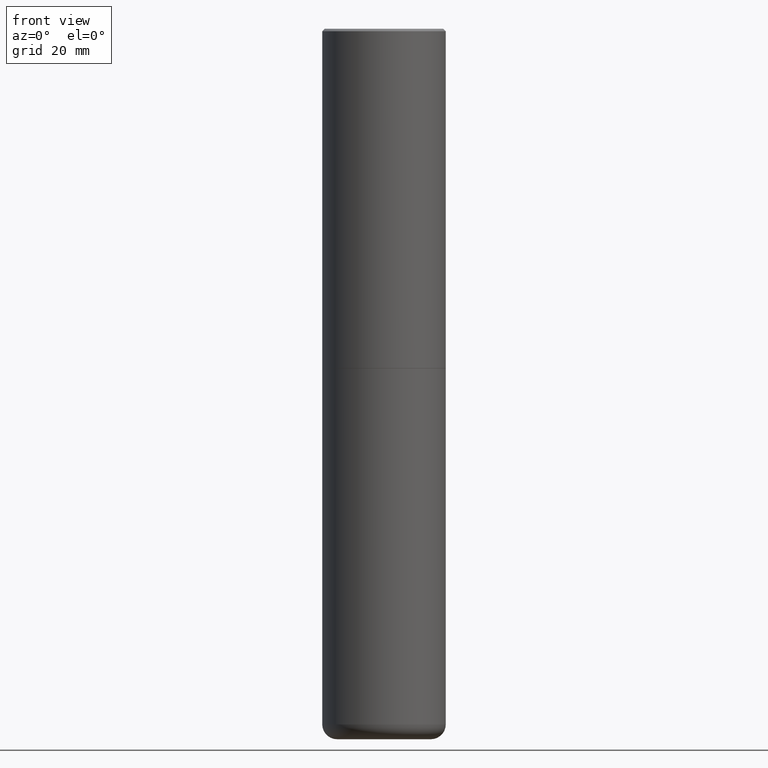
[diagram: clean part render]
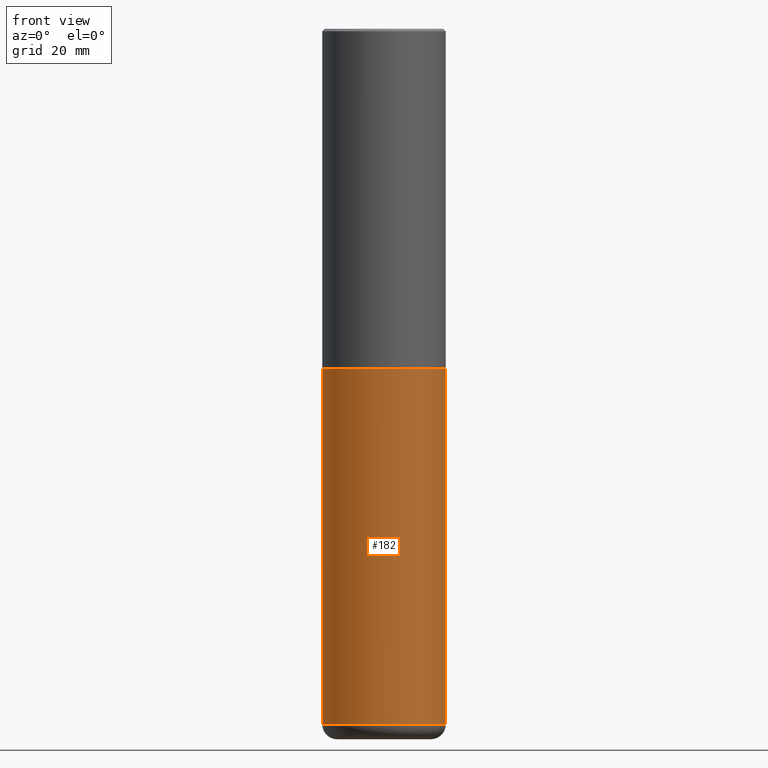
[diagram: same view with one face highlighted and labeled with its STEP entity id]
A machine part, front view. The second image highlights one B-rep face of the part: STEP entity #182.
In plain terms, the highlighted cylindrical surface (partial cylindrical patch) has radius 12.7 mm, axis along (-0, 0, 1).
Its self-contained STEP definition (entity closure, byte-faithful):
#3 = ORIENTED_EDGE ( 'NONE', *, *, #216, .F. ) ;
#11 = VECTOR ( 'NONE', #122, 39.37007874015748143 ) ;
#13 = FACE_OUTER_BOUND ( 'NONE', #116, .T. ) ;
#14 = EDGE_CURVE ( 'NONE', #17, #47, #350, .T. ) ;
#17 = VERTEX_POINT ( 'NONE', #282 ) ;
#26 = VERTEX_POINT ( 'NONE', #417 ) ;
#47 = VERTEX_POINT ( 'NONE', #418 ) ;
#65 = VECTOR ( 'NONE', #148, 39.37007874015748143 ) ;
#82 = CIRCLE ( 'NONE', #281, 0.5000000000000000000 ) ;
#95 = CYLINDRICAL_SURFACE ( 'NONE', #188, 0.5000000000000000000 ) ;
#98 = CARTESIAN_POINT ( 'NONE',  ( 0.000000000000000000, 0.000000000000000000, 0.000000000000000000 ) ) ;
#116 = EDGE_LOOP ( 'NONE', ( #3, #205, #276, #251 ) ) ;
#122 = DIRECTION ( 'NONE',  ( -2.445468806185136877E-29, 3.491481338843145188E-15, 1.000000000000000000 ) ) ;
#123 = CARTESIAN_POINT ( 'NONE',  ( -0.5000000000000000000, 3.552713678800500929E-15, -2.459467545127452891E-29 ) ) ;
#132 = DIRECTION ( 'NONE',  ( 1.000000000000000000, -6.982962677686266711E-15, 4.876176775795935793E-29 ) ) ;
#148 = DIRECTION ( 'NONE',  ( -2.445468806185136877E-29, 3.491481338843145188E-15, 1.000000000000000000 ) ) ;
#151 = AXIS2_PLACEMENT_3D ( 'NONE', #325, #193, #227 ) ;
#161 = LINE ( 'NONE', #123, #11 ) ;
#182 = ADVANCED_FACE ( 'NONE', ( #13 ), #95, .T. ) ;
#188 = AXIS2_PLACEMENT_3D ( 'NONE', #98, #302, #132 ) ;
#193 = DIRECTION ( 'NONE',  ( -2.445468806185136597E-29, 3.491481338843145583E-15, 1.000000000000000000 ) ) ;
#205 = ORIENTED_EDGE ( 'NONE', *, *, #380, .T. ) ;
#216 = EDGE_CURVE ( 'NONE', #393, #26, #161, .T. ) ;
#227 = DIRECTION ( 'NONE',  ( 1.000000000000000000, -6.982962677686263555E-15, 0.000000000000000000 ) ) ;
#231 = DIRECTION ( 'NONE',  ( 1.000000000000000000, -6.982962677686266711E-15, 0.000000000000000000 ) ) ;
#233 = CARTESIAN_POINT ( 'NONE',  ( -0.4999999999999998335, -1.610432625888640549E-14, -5.629999999999999893 ) ) ;
#251 = ORIENTED_EDGE ( 'NONE', *, *, #255, .F. ) ;
#255 = EDGE_CURVE ( 'NONE', #26, #47, #82, .T. ) ;
#276 = ORIENTED_EDGE ( 'NONE', *, *, #14, .T. ) ;
#281 = AXIS2_PLACEMENT_3D ( 'NONE', #401, #398, #231 ) ;
#282 = CARTESIAN_POINT ( 'NONE',  ( 0.4999999999999998335, -2.314852127653003978E-14, -5.629999999999999893 ) ) ;
#302 = DIRECTION ( 'NONE',  ( -2.445468806185136597E-29, 3.491481338843145583E-15, 1.000000000000000000 ) ) ;
#305 = CIRCLE ( 'NONE', #151, 0.4999999999999999445 ) ;
#321 = CARTESIAN_POINT ( 'NONE',  ( 0.5000000000000000000, -3.491481338843133355E-15, 2.438088387897967896E-29 ) ) ;
#325 = CARTESIAN_POINT ( 'NONE',  ( 1.376798937882231913E-28, -1.965703993768690642E-14, -5.629999999999999893 ) ) ;
#350 = LINE ( 'NONE', #321, #65 ) ;
#380 = EDGE_CURVE ( 'NONE', #393, #17, #305, .T. ) ;
#393 = VERTEX_POINT ( 'NONE', #233 ) ;
#398 = DIRECTION ( 'NONE',  ( -2.445468806185136597E-29, 3.491481338843145583E-15, 1.000000000000000000 ) ) ;
#401 = CARTESIAN_POINT ( 'NONE',  ( 6.725039217009123399E-29, -9.601573681818648281E-15, -2.749999999999999556 ) ) ;
#417 = CARTESIAN_POINT ( 'NONE',  ( -0.5000000000000000000, -1.107659313095227642E-14, -2.749999999999999556 ) ) ;
#418 = CARTESIAN_POINT ( 'NONE',  ( 0.5000000000000000000, -1.309305502066178164E-14, -2.749999999999999556 ) ) ;